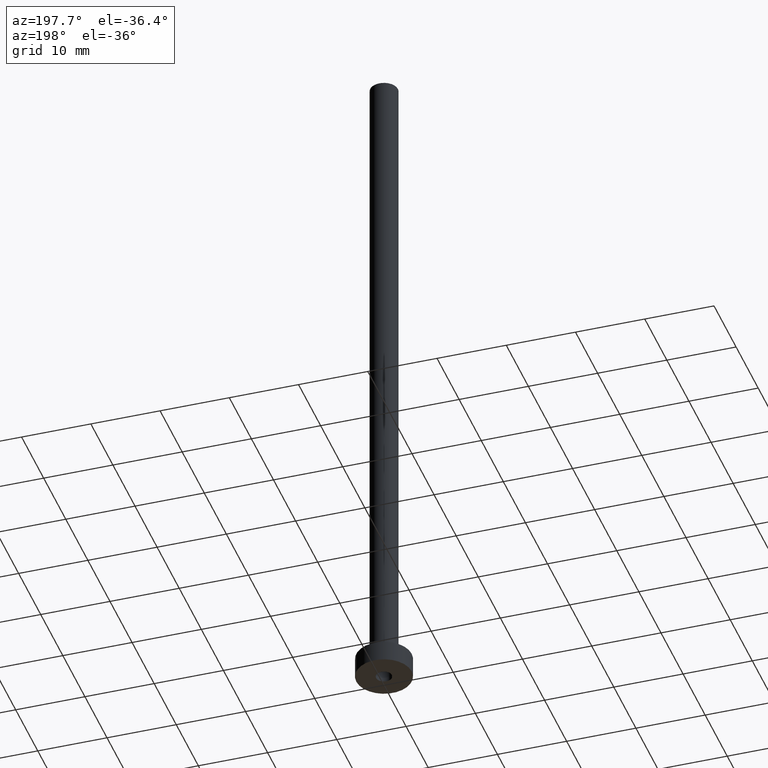
[diagram: clean part render]
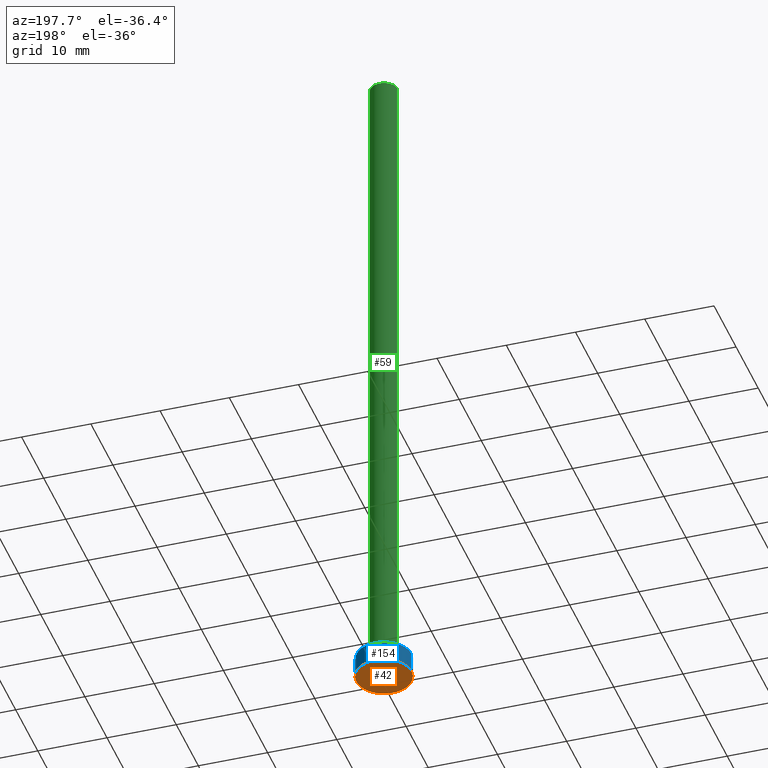
[diagram: same view with three faces highlighted in distinct colors, each labeled with its STEP entity id]
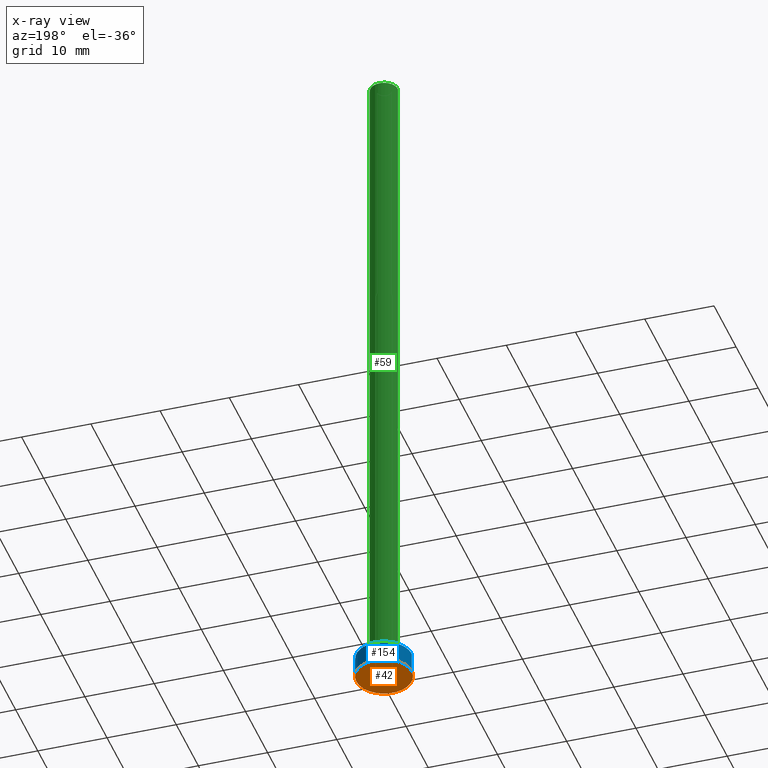
[diagram: x-ray of the same camera — body ghosted, the three highlighted faces saturated]
A machine part, auxiliary view with three faces highlighted in distinct colors.
The next image is the same camera in x-ray (body ghosted, the three faces saturated) — at least one of them is partly hidden behind the body in this view.
Their STEP definitions:

[orange] entity #42 — the highlighted planar face has unit normal (0, 0, 1).
#4 = DIRECTION ( 'NONE',  ( -0.000000000000000000, -0.000000000000000000, -1.000000000000000000 ) ) ;
#6 = CARTESIAN_POINT ( 'NONE',  ( -4.000000000000000000, 0.000000000000000000, 0.000000000000000000 ) ) ;
#15 = CARTESIAN_POINT ( 'NONE',  ( 1.149999999999999911, 1.408343819019456028E-16, 0.000000000000000000 ) ) ;
#42 = ADVANCED_FACE ( 'NONE', ( #447, #119 ), #371, .F. ) ;
#44 = EDGE_LOOP ( 'NONE', ( #324, #380 ) ) ;
#53 = CARTESIAN_POINT ( 'NONE',  ( 4.000000000000000000, 4.898587196589412829E-16, 0.000000000000000000 ) ) ;
#54 = VERTEX_POINT ( 'NONE', #53 ) ;
#58 = CARTESIAN_POINT ( 'NONE',  ( 0.000000000000000000, 0.000000000000000000, 0.000000000000000000 ) ) ;
#70 = ORIENTED_EDGE ( 'NONE', *, *, #446, .F. ) ;
#74 = CARTESIAN_POINT ( 'NONE',  ( 0.000000000000000000, 0.000000000000000000, 0.000000000000000000 ) ) ;
#77 = AXIS2_PLACEMENT_3D ( 'NONE', #375, #197, #350 ) ;
#102 = DIRECTION ( 'NONE',  ( 1.000000000000000000, 0.000000000000000000, 0.000000000000000000 ) ) ;
#112 = AXIS2_PLACEMENT_3D ( 'NONE', #74, #218, #265 ) ;
#114 = AXIS2_PLACEMENT_3D ( 'NONE', #231, #122, #276 ) ;
#119 = FACE_OUTER_BOUND ( 'NONE', #152, .T. ) ;
#122 = DIRECTION ( 'NONE',  ( 0.000000000000000000, 0.000000000000000000, 1.000000000000000000 ) ) ;
#133 = EDGE_CURVE ( 'NONE', #333, #364, #282, .T. ) ;
#152 = EDGE_LOOP ( 'NONE', ( #362, #70 ) ) ;
#164 = CIRCLE ( 'NONE', #112, 4.000000000000000000 ) ;
#176 = EDGE_CURVE ( 'NONE', #364, #333, #401, .T. ) ;
#178 = DIRECTION ( 'NONE',  ( 0.000000000000000000, 0.000000000000000000, 1.000000000000000000 ) ) ;
#192 = CARTESIAN_POINT ( 'NONE',  ( -1.149999999999999911, 0.000000000000000000, 0.000000000000000000 ) ) ;
#197 = DIRECTION ( 'NONE',  ( -0.000000000000000000, -0.000000000000000000, -1.000000000000000000 ) ) ;
#218 = DIRECTION ( 'NONE',  ( 0.000000000000000000, 0.000000000000000000, 1.000000000000000000 ) ) ;
#231 = CARTESIAN_POINT ( 'NONE',  ( 0.000000000000000000, 0.000000000000000000, 0.000000000000000000 ) ) ;
#265 = DIRECTION ( 'NONE',  ( 1.000000000000000000, 0.000000000000000000, 0.000000000000000000 ) ) ;
#276 = DIRECTION ( 'NONE',  ( 1.000000000000000000, 0.000000000000000000, -0.000000000000000000 ) ) ;
#282 = CIRCLE ( 'NONE', #77, 1.149999999999999911 ) ;
#321 = CARTESIAN_POINT ( 'NONE',  ( 0.000000000000000000, 0.000000000000000000, 0.000000000000000000 ) ) ;
#324 = ORIENTED_EDGE ( 'NONE', *, *, #176, .F. ) ;
#333 = VERTEX_POINT ( 'NONE', #15 ) ;
#341 = AXIS2_PLACEMENT_3D ( 'NONE', #321, #4, #102 ) ;
#350 = DIRECTION ( 'NONE',  ( 1.000000000000000000, 0.000000000000000000, 0.000000000000000000 ) ) ;
#351 = EDGE_CURVE ( 'NONE', #393, #54, #352, .T. ) ;
#352 = CIRCLE ( 'NONE', #361, 4.000000000000000000 ) ;
#361 = AXIS2_PLACEMENT_3D ( 'NONE', #58, #178, #390 ) ;
#362 = ORIENTED_EDGE ( 'NONE', *, *, #351, .F. ) ;
#364 = VERTEX_POINT ( 'NONE', #192 ) ;
#371 = PLANE ( 'NONE',  #114 ) ;
#375 = CARTESIAN_POINT ( 'NONE',  ( 0.000000000000000000, 0.000000000000000000, 0.000000000000000000 ) ) ;
#380 = ORIENTED_EDGE ( 'NONE', *, *, #133, .F. ) ;
#390 = DIRECTION ( 'NONE',  ( 1.000000000000000000, 0.000000000000000000, 0.000000000000000000 ) ) ;
#393 = VERTEX_POINT ( 'NONE', #6 ) ;
#401 = CIRCLE ( 'NONE', #341, 1.149999999999999911 ) ;
#446 = EDGE_CURVE ( 'NONE', #54, #393, #164, .T. ) ;
#447 = FACE_BOUND ( 'NONE', #44, .T. ) ;

[blue] entity #154 — the highlighted cylindrical surface (edge-blend (fillet) strip) has radius 4 mm, axis along (-0, -0, -1).
#6 = CARTESIAN_POINT ( 'NONE',  ( -4.000000000000000000, 0.000000000000000000, 0.000000000000000000 ) ) ;
#47 = DIRECTION ( 'NONE',  ( -0.000000000000000000, -0.000000000000000000, -1.000000000000000000 ) ) ;
#51 = CYLINDRICAL_SURFACE ( 'NONE', #85, 4.000000000000000000 ) ;
#52 = VERTEX_POINT ( 'NONE', #88 ) ;
#53 = CARTESIAN_POINT ( 'NONE',  ( 4.000000000000000000, 4.898587196589412829E-16, 0.000000000000000000 ) ) ;
#54 = VERTEX_POINT ( 'NONE', #53 ) ;
#74 = CARTESIAN_POINT ( 'NONE',  ( 0.000000000000000000, 0.000000000000000000, 0.000000000000000000 ) ) ;
#75 = CARTESIAN_POINT ( 'NONE',  ( -4.000000000000000000, 0.000000000000000000, 3.000000000000000000 ) ) ;
#85 = AXIS2_PLACEMENT_3D ( 'NONE', #313, #206, #381 ) ;
#88 = CARTESIAN_POINT ( 'NONE',  ( -4.000000000000000000, 0.000000000000000000, 3.000000000000000000 ) ) ;
#107 = ORIENTED_EDGE ( 'NONE', *, *, #344, .F. ) ;
#112 = AXIS2_PLACEMENT_3D ( 'NONE', #74, #218, #265 ) ;
#150 = FACE_OUTER_BOUND ( 'NONE', #255, .T. ) ;
#154 = ADVANCED_FACE ( 'NONE', ( #150 ), #51, .T. ) ;
#158 = LINE ( 'NONE', #458, #267 ) ;
#164 = CIRCLE ( 'NONE', #112, 4.000000000000000000 ) ;
#186 = AXIS2_PLACEMENT_3D ( 'NONE', #261, #300, #443 ) ;
#206 = DIRECTION ( 'NONE',  ( -0.000000000000000000, -0.000000000000000000, -1.000000000000000000 ) ) ;
#218 = DIRECTION ( 'NONE',  ( 0.000000000000000000, 0.000000000000000000, 1.000000000000000000 ) ) ;
#229 = VECTOR ( 'NONE', #47, 1000.000000000000000 ) ;
#237 = VERTEX_POINT ( 'NONE', #392 ) ;
#255 = EDGE_LOOP ( 'NONE', ( #107, #430, #418, #440 ) ) ;
#261 = CARTESIAN_POINT ( 'NONE',  ( 0.000000000000000000, 0.000000000000000000, 3.000000000000000000 ) ) ;
#265 = DIRECTION ( 'NONE',  ( 1.000000000000000000, 0.000000000000000000, 0.000000000000000000 ) ) ;
#267 = VECTOR ( 'NONE', #405, 1000.000000000000000 ) ;
#300 = DIRECTION ( 'NONE',  ( 0.000000000000000000, 0.000000000000000000, 1.000000000000000000 ) ) ;
#313 = CARTESIAN_POINT ( 'NONE',  ( 0.000000000000000000, 0.000000000000000000, 3.000000000000000000 ) ) ;
#314 = EDGE_CURVE ( 'NONE', #237, #54, #158, .T. ) ;
#323 = CIRCLE ( 'NONE', #186, 4.000000000000000000 ) ;
#335 = LINE ( 'NONE', #75, #229 ) ;
#342 = EDGE_CURVE ( 'NONE', #52, #393, #335, .T. ) ;
#344 = EDGE_CURVE ( 'NONE', #237, #52, #323, .T. ) ;
#381 = DIRECTION ( 'NONE',  ( -1.000000000000000000, 0.000000000000000000, 0.000000000000000000 ) ) ;
#392 = CARTESIAN_POINT ( 'NONE',  ( 4.000000000000000000, 4.898587196589412829E-16, 3.000000000000000000 ) ) ;
#393 = VERTEX_POINT ( 'NONE', #6 ) ;
#405 = DIRECTION ( 'NONE',  ( -0.000000000000000000, -0.000000000000000000, -1.000000000000000000 ) ) ;
#418 = ORIENTED_EDGE ( 'NONE', *, *, #446, .T. ) ;
#430 = ORIENTED_EDGE ( 'NONE', *, *, #314, .T. ) ;
#440 = ORIENTED_EDGE ( 'NONE', *, *, #342, .F. ) ;
#443 = DIRECTION ( 'NONE',  ( 1.000000000000000000, 0.000000000000000000, 0.000000000000000000 ) ) ;
#446 = EDGE_CURVE ( 'NONE', #54, #393, #164, .T. ) ;
#458 = CARTESIAN_POINT ( 'NONE',  ( 4.000000000000000000, 4.898587196589412829E-16, 3.000000000000000000 ) ) ;

[green] entity #59 — the highlighted cylindrical surface (edge-blend (fillet) strip) has radius 2 mm, axis along (-0, -0, -1).
#8 = ORIENTED_EDGE ( 'NONE', *, *, #230, .T. ) ;
#16 = EDGE_LOOP ( 'NONE', ( #425, #40, #8, #134 ) ) ;
#30 = DIRECTION ( 'NONE',  ( 0.000000000000000000, 0.000000000000000000, 1.000000000000000000 ) ) ;
#40 = ORIENTED_EDGE ( 'NONE', *, *, #329, .T. ) ;
#56 = CARTESIAN_POINT ( 'NONE',  ( -2.000000000000000000, 0.000000000000000000, 100.0000000000000000 ) ) ;
#59 = ADVANCED_FACE ( 'NONE', ( #209 ), #101, .T. ) ;
#62 = DIRECTION ( 'NONE',  ( 1.000000000000000000, 0.000000000000000000, 0.000000000000000000 ) ) ;
#101 = CYLINDRICAL_SURFACE ( 'NONE', #434, 2.000000000000000000 ) ;
#104 = VECTOR ( 'NONE', #410, 1000.000000000000000 ) ;
#110 = EDGE_CURVE ( 'NONE', #121, #207, #115, .T. ) ;
#111 = CIRCLE ( 'NONE', #367, 2.000000000000000000 ) ;
#115 = CIRCLE ( 'NONE', #444, 2.000000000000000000 ) ;
#121 = VERTEX_POINT ( 'NONE', #383 ) ;
#134 = ORIENTED_EDGE ( 'NONE', *, *, #298, .F. ) ;
#136 = CARTESIAN_POINT ( 'NONE',  ( 2.000000000000000000, 2.449293598294705921E-16, 3.299999999999997158 ) ) ;
#165 = DIRECTION ( 'NONE',  ( -1.000000000000000000, 0.000000000000000000, 0.000000000000000000 ) ) ;
#187 = VERTEX_POINT ( 'NONE', #346 ) ;
#196 = CARTESIAN_POINT ( 'NONE',  ( 0.000000000000000000, 0.000000000000000000, 100.0000000000000000 ) ) ;
#207 = VERTEX_POINT ( 'NONE', #56 ) ;
#209 = FACE_OUTER_BOUND ( 'NONE', #16, .T. ) ;
#220 = LINE ( 'NONE', #360, #104 ) ;
#222 = VECTOR ( 'NONE', #396, 1000.000000000000000 ) ;
#230 = EDGE_CURVE ( 'NONE', #376, #187, #111, .T. ) ;
#243 = CARTESIAN_POINT ( 'NONE',  ( 0.000000000000000000, 0.000000000000000000, 100.0000000000000000 ) ) ;
#247 = CARTESIAN_POINT ( 'NONE',  ( 0.000000000000000000, 0.000000000000000000, 3.299999999999997158 ) ) ;
#296 = LINE ( 'NONE', #438, #222 ) ;
#298 = EDGE_CURVE ( 'NONE', #207, #187, #296, .T. ) ;
#318 = DIRECTION ( 'NONE',  ( 1.000000000000000000, 0.000000000000000000, 0.000000000000000000 ) ) ;
#329 = EDGE_CURVE ( 'NONE', #121, #376, #220, .T. ) ;
#346 = CARTESIAN_POINT ( 'NONE',  ( -2.000000000000000000, 0.000000000000000000, 3.299999999999997158 ) ) ;
#347 = DIRECTION ( 'NONE',  ( 0.000000000000000000, 0.000000000000000000, 1.000000000000000000 ) ) ;
#360 = CARTESIAN_POINT ( 'NONE',  ( 2.000000000000000000, 2.449293598294705921E-16, 100.0000000000000000 ) ) ;
#367 = AXIS2_PLACEMENT_3D ( 'NONE', #247, #30, #62 ) ;
#376 = VERTEX_POINT ( 'NONE', #136 ) ;
#383 = CARTESIAN_POINT ( 'NONE',  ( 2.000000000000000000, 2.449293598294705921E-16, 100.0000000000000000 ) ) ;
#386 = DIRECTION ( 'NONE',  ( -0.000000000000000000, -0.000000000000000000, -1.000000000000000000 ) ) ;
#396 = DIRECTION ( 'NONE',  ( -0.000000000000000000, -0.000000000000000000, -1.000000000000000000 ) ) ;
#410 = DIRECTION ( 'NONE',  ( -0.000000000000000000, -0.000000000000000000, -1.000000000000000000 ) ) ;
#425 = ORIENTED_EDGE ( 'NONE', *, *, #110, .F. ) ;
#434 = AXIS2_PLACEMENT_3D ( 'NONE', #243, #386, #165 ) ;
#438 = CARTESIAN_POINT ( 'NONE',  ( -2.000000000000000000, 0.000000000000000000, 100.0000000000000000 ) ) ;
#444 = AXIS2_PLACEMENT_3D ( 'NONE', #196, #347, #318 ) ;